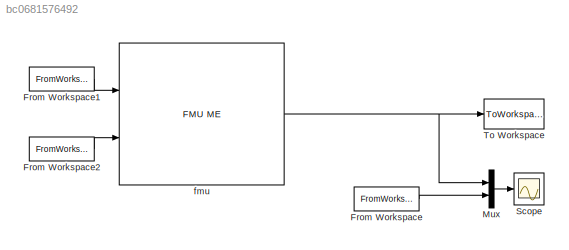
MODEL slx_bc0681576492
KIND model
CONFIG AbsTol = auto
CONFIG EnableMultiTasking = on
CONFIG FixedStep = 0.01
CONFIG MaxStep = auto
CONFIG MinStep = auto
CONFIG RelTol = 0.001
CONFIG SampleTimeConstraint = Unconstrained
CONFIG Solver = FixedStepAuto
CONFIG SolverName = FixedStepAuto
CONFIG StartTime = 0
CONFIG StopTime = 10
BLOCK [FromWorkspace] From Workspace
  VariableName = dataMeasuredS
BLOCK [FromWorkspace] From Workspace1
  VariableName = [inputSignalS(:,1),inputSignalS(:,2)]
BLOCK [FromWorkspace] From Workspace2
  VariableName = [inputSignalS(:,1),inputSignalS(:,3)]
BLOCK [Mux] Mux
  DisplayOption = bar
  Inputs = 2
  Ports = [2, 1]
BLOCK [Scope] Scope
  Floating = off
  NumInputPorts = 1
  Ports = [1]
  ScopeSpecificationString = Simulink.scopes.TimeScopeBlockCfg('CurrentConfiguration', extmgr.ConfigurationSet(extmgr.Configuration('Core','General UI',true,'FigureColor',[1 1 1]),extmgr.Configuration('Core','Source UI',true),extmgr.Configuration('Sources','WiredSimulink',true),extmgr.Configuration('Visuals','Time Domain',true,'SerializedDisplays',{struct('MinYLimReal','-0.00462','MaxYLimReal','0.00153','YLabelReal','','MinYL...<+1432ch>
BLOCK [ToWorkspace] To Workspace
  MaxDataPoints = inf
  Ports = [1]
  SampleTime = 0.005
  SaveFormat = Structure With Time
  VariableName = simout
BLOCK [Reference] fmu  REF=fmu_me_lib/FMU ME
  Description = Simulates an FMU for Model Exchange 1.0 or Model Exchange 2.0.
  Ports = [2, 1]
  SourceBlock = fmu_me_lib/FMU ME
  UserDataPersistent = on
LINE From Workspace1:1 -> fmu:1
LINE From Workspace2:1 -> fmu:2
LINE From Workspace:1 -> Mux:2
LINE Mux:1 -> Scope:1
NET fmu:1 -> Mux:1, To Workspace:1
note: NET lines group one-source signal fan-out (src -> all destinations, sorted); 1:1 wires keep LINE
